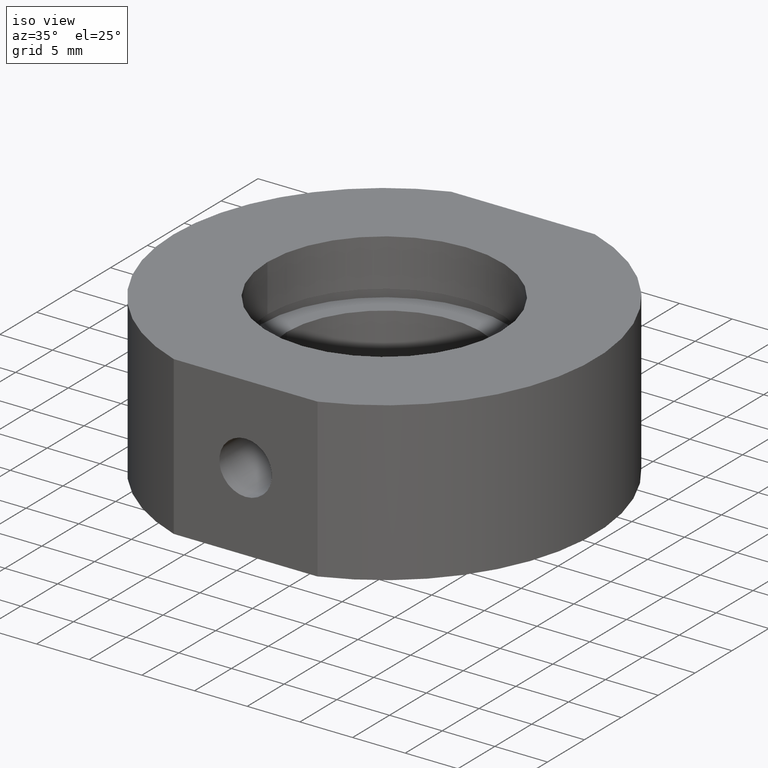
[diagram: clean part render]
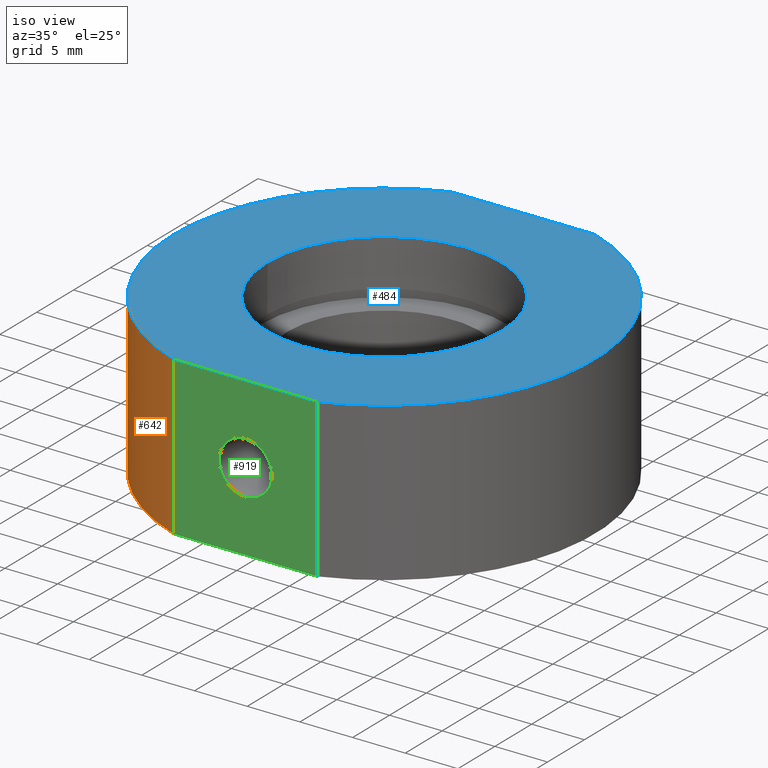
[diagram: same view with three faces highlighted in distinct colors, each labeled with its STEP entity id]
A machine part, iso view with three faces highlighted in distinct colors.
Their STEP definitions:

[orange] entity #642 — the highlighted cylindrical surface (partial cylindrical patch) has radius 20 mm, axis along (-0, -0, -1).
#19 = DIRECTION ( 'NONE',  ( 1.224646799147350500E-016, 0.0000000000000000000, 1.000000000000000000 ) ) ;
#27 = DIRECTION ( 'NONE',  ( -1.224646799147350500E-016, -0.0000000000000000000, -1.000000000000000000 ) ) ;
#40 = LINE ( 'NONE', #400, #304 ) ;
#89 = CARTESIAN_POINT ( 'NONE',  ( 2.992922652324802700E-015, 0.0000000000000000000, -7.500000000000000000 ) ) ;
#110 = CARTESIAN_POINT ( 'NONE',  ( 4.829892851045827200E-015, 0.0000000000000000000, 7.499999999999992900 ) ) ;
#168 = DIRECTION ( 'NONE',  ( -1.000000000000000000, 0.0000000000000000000, 1.301042606982605300E-016 ) ) ;
#196 = CARTESIAN_POINT ( 'NONE',  ( -19.99999999999999600, 0.0000000000000000000, 7.499999999999995600 ) ) ;
#223 = AXIS2_PLACEMENT_3D ( 'NONE', #89, #27, #168 ) ;
#231 = CIRCLE ( 'NONE', #542, 20.00000000000000000 ) ;
#265 = LINE ( 'NONE', #707, #591 ) ;
#303 = EDGE_CURVE ( 'NONE', #778, #910, #231, .T. ) ;
#304 = VECTOR ( 'NONE', #19, 1000.000000000000000 ) ;
#321 = ORIENTED_EDGE ( 'NONE', *, *, #710, .T. ) ;
#335 = CARTESIAN_POINT ( 'NONE',  ( -19.99999999999999600, 0.0000000000000000000, -7.499999999999997300 ) ) ;
#354 = EDGE_CURVE ( 'NONE', #360, #676, #748, .T. ) ;
#360 = VERTEX_POINT ( 'NONE', #618 ) ;
#400 = CARTESIAN_POINT ( 'NONE',  ( -6.823488843692808300, -18.79999999999999400, -31.93906810035839800 ) ) ;
#474 = DIRECTION ( 'NONE',  ( -1.000000000000000000, 0.0000000000000000000, 0.0000000000000000000 ) ) ;
#532 = ORIENTED_EDGE ( 'NONE', *, *, #354, .F. ) ;
#542 = AXIS2_PLACEMENT_3D ( 'NONE', #110, #926, #725 ) ;
#543 = DIRECTION ( 'NONE',  ( -1.224646799147350500E-016, -0.0000000000000000000, -1.000000000000000000 ) ) ;
#560 = ORIENTED_EDGE ( 'NONE', *, *, #303, .T. ) ;
#591 = VECTOR ( 'NONE', #638, 1000.000000000000000 ) ;
#615 = CYLINDRICAL_SURFACE ( 'NONE', #884, 20.00000000000000000 ) ;
#618 = CARTESIAN_POINT ( 'NONE',  ( -6.823488843692790500, -18.80000000000000100, -7.499999999999999100 ) ) ;
#638 = DIRECTION ( 'NONE',  ( -1.224646799147350500E-016, -0.0000000000000000000, -1.000000000000000000 ) ) ;
#641 = EDGE_LOOP ( 'NONE', ( #560, #321, #532, #881 ) ) ;
#642 = ADVANCED_FACE ( 'NONE', ( #652 ), #615, .T. ) ;
#652 = FACE_OUTER_BOUND ( 'NONE', #641, .T. ) ;
#676 = VERTEX_POINT ( 'NONE', #335 ) ;
#678 = CARTESIAN_POINT ( 'NONE',  ( 0.0000000000000000000, 0.0000000000000000000, -31.93906810035839800 ) ) ;
#707 = CARTESIAN_POINT ( 'NONE',  ( -20.00000000000000000, 0.0000000000000000000, -31.93906810035839800 ) ) ;
#710 = EDGE_CURVE ( 'NONE', #910, #676, #265, .T. ) ;
#725 = DIRECTION ( 'NONE',  ( -1.000000000000000000, 0.0000000000000000000, 1.301042606982605300E-016 ) ) ;
#748 = CIRCLE ( 'NONE', #223, 20.00000000000000000 ) ;
#749 = EDGE_CURVE ( 'NONE', #360, #778, #40, .T. ) ;
#778 = VERTEX_POINT ( 'NONE', #835 ) ;
#835 = CARTESIAN_POINT ( 'NONE',  ( -6.823488843692788700, -18.80000000000000100, 7.500000000000000000 ) ) ;
#881 = ORIENTED_EDGE ( 'NONE', *, *, #749, .T. ) ;
#884 = AXIS2_PLACEMENT_3D ( 'NONE', #678, #543, #474 ) ;
#910 = VERTEX_POINT ( 'NONE', #196 ) ;
#926 = DIRECTION ( 'NONE',  ( -1.224646799147350500E-016, -0.0000000000000000000, -1.000000000000000000 ) ) ;

[blue] entity #484 — the highlighted planar face has unit normal (-0, 0, -1).
#25 = CARTESIAN_POINT ( 'NONE',  ( 4.829892851045828800E-015, 0.0000000000000000000, 7.500000000000000000 ) ) ;
#34 = CIRCLE ( 'NONE', #787, 11.09999999999999800 ) ;
#37 = EDGE_CURVE ( 'NONE', #163, #637, #34, .T. ) ;
#42 = DIRECTION ( 'NONE',  ( -1.000000000000000000, 0.0000000000000000000, 1.301042606982605300E-016 ) ) ;
#55 = DIRECTION ( 'NONE',  ( -1.224646799147350500E-016, -0.0000000000000000000, -1.000000000000000000 ) ) ;
#76 = AXIS2_PLACEMENT_3D ( 'NONE', #355, #55, #42 ) ;
#110 = CARTESIAN_POINT ( 'NONE',  ( 4.829892851045827200E-015, 0.0000000000000000000, 7.499999999999992900 ) ) ;
#127 = DIRECTION ( 'NONE',  ( -1.000000000000000000, -0.0000000000000000000, -0.0000000000000000000 ) ) ;
#135 = ORIENTED_EDGE ( 'NONE', *, *, #401, .F. ) ;
#136 = PLANE ( 'NONE',  #230 ) ;
#163 = VERTEX_POINT ( 'NONE', #170 ) ;
#170 = CARTESIAN_POINT ( 'NONE',  ( 11.10000000000000100, 1.359357947053561800E-015, 7.499999999999998200 ) ) ;
#177 = DIRECTION ( 'NONE',  ( -1.224646799147350500E-016, -0.0000000000000000000, -1.000000000000000000 ) ) ;
#181 = VERTEX_POINT ( 'NONE', #233 ) ;
#196 = CARTESIAN_POINT ( 'NONE',  ( -19.99999999999999600, 0.0000000000000000000, 7.499999999999995600 ) ) ;
#204 = EDGE_LOOP ( 'NONE', ( #951, #483, #718, #135, #852 ) ) ;
#230 = AXIS2_PLACEMENT_3D ( 'NONE', #508, #368, #878 ) ;
#231 = CIRCLE ( 'NONE', #542, 20.00000000000000000 ) ;
#233 = CARTESIAN_POINT ( 'NONE',  ( -6.823488843692788700, 18.80000000000000100, 7.500000000000000000 ) ) ;
#252 = ORIENTED_EDGE ( 'NONE', *, *, #37, .T. ) ;
#271 = CARTESIAN_POINT ( 'NONE',  ( 6.823488843692798500, -18.80000000000000100, 7.500000000000000000 ) ) ;
#275 = FACE_BOUND ( 'NONE', #520, .T. ) ;
#291 = CARTESIAN_POINT ( 'NONE',  ( 4.829892851045828800E-015, 0.0000000000000000000, 7.500000000000000000 ) ) ;
#303 = EDGE_CURVE ( 'NONE', #778, #910, #231, .T. ) ;
#355 = CARTESIAN_POINT ( 'NONE',  ( 4.829892851045827200E-015, 0.0000000000000000000, 7.499999999999992900 ) ) ;
#368 = DIRECTION ( 'NONE',  ( -1.224646799147350500E-016, 0.0000000000000000000, -1.000000000000000000 ) ) ;
#392 = DIRECTION ( 'NONE',  ( -1.000000000000000000, 0.0000000000000000000, 1.562813942321448000E-016 ) ) ;
#401 = EDGE_CURVE ( 'NONE', #181, #409, #491, .T. ) ;
#403 = CARTESIAN_POINT ( 'NONE',  ( 4.829892851045827200E-015, 0.0000000000000000000, 7.499999999999992900 ) ) ;
#409 = VERTEX_POINT ( 'NONE', #843 ) ;
#483 = ORIENTED_EDGE ( 'NONE', *, *, #788, .F. ) ;
#484 = ADVANCED_FACE ( 'NONE', ( #876, #275 ), #136, .F. ) ;
#491 = LINE ( 'NONE', #904, #943 ) ;
#508 = CARTESIAN_POINT ( 'NONE',  ( 20.00000000000000400, 0.0000000000000000000, 7.499999999999995600 ) ) ;
#516 = DIRECTION ( 'NONE',  ( -1.000000000000000000, 0.0000000000000000000, 1.562813942321448000E-016 ) ) ;
#520 = EDGE_LOOP ( 'NONE', ( #658, #252 ) ) ;
#542 = AXIS2_PLACEMENT_3D ( 'NONE', #110, #926, #725 ) ;
#561 = DIRECTION ( 'NONE',  ( -1.000000000000000000, 0.0000000000000000000, 1.301042606982605300E-016 ) ) ;
#583 = CARTESIAN_POINT ( 'NONE',  ( -33.15197265346817100, -18.80000000000000100, 7.499999999999998200 ) ) ;
#625 = AXIS2_PLACEMENT_3D ( 'NONE', #25, #177, #392 ) ;
#637 = VERTEX_POINT ( 'NONE', #888 ) ;
#658 = ORIENTED_EDGE ( 'NONE', *, *, #699, .T. ) ;
#695 = DIRECTION ( 'NONE',  ( 1.000000000000000000, 0.0000000000000000000, 0.0000000000000000000 ) ) ;
#699 = EDGE_CURVE ( 'NONE', #637, #163, #765, .T. ) ;
#714 = EDGE_CURVE ( 'NONE', #910, #181, #921, .T. ) ;
#718 = ORIENTED_EDGE ( 'NONE', *, *, #897, .F. ) ;
#719 = LINE ( 'NONE', #583, #747 ) ;
#725 = DIRECTION ( 'NONE',  ( -1.000000000000000000, 0.0000000000000000000, 1.301042606982605300E-016 ) ) ;
#747 = VECTOR ( 'NONE', #127, 1000.000000000000000 ) ;
#765 = CIRCLE ( 'NONE', #625, 11.09999999999999800 ) ;
#778 = VERTEX_POINT ( 'NONE', #835 ) ;
#787 = AXIS2_PLACEMENT_3D ( 'NONE', #291, #942, #516 ) ;
#788 = EDGE_CURVE ( 'NONE', #902, #778, #719, .T. ) ;
#812 = AXIS2_PLACEMENT_3D ( 'NONE', #403, #903, #561 ) ;
#835 = CARTESIAN_POINT ( 'NONE',  ( -6.823488843692788700, -18.80000000000000100, 7.500000000000000000 ) ) ;
#843 = CARTESIAN_POINT ( 'NONE',  ( 6.823488843692798500, 18.80000000000000100, 7.500000000000000000 ) ) ;
#852 = ORIENTED_EDGE ( 'NONE', *, *, #714, .F. ) ;
#876 = FACE_OUTER_BOUND ( 'NONE', #204, .T. ) ;
#878 = DIRECTION ( 'NONE',  ( -1.000000000000000000, 0.0000000000000000000, 1.224646799147350500E-016 ) ) ;
#888 = CARTESIAN_POINT ( 'NONE',  ( -11.09999999999999300, 0.0000000000000000000, 7.500000000000001800 ) ) ;
#897 = EDGE_CURVE ( 'NONE', #409, #902, #930, .T. ) ;
#902 = VERTEX_POINT ( 'NONE', #271 ) ;
#903 = DIRECTION ( 'NONE',  ( -1.224646799147350500E-016, -0.0000000000000000000, -1.000000000000000000 ) ) ;
#904 = CARTESIAN_POINT ( 'NONE',  ( -33.15197265346817100, 18.80000000000000100, 7.499999999999998200 ) ) ;
#910 = VERTEX_POINT ( 'NONE', #196 ) ;
#921 = CIRCLE ( 'NONE', #812, 20.00000000000000000 ) ;
#926 = DIRECTION ( 'NONE',  ( -1.224646799147350500E-016, -0.0000000000000000000, -1.000000000000000000 ) ) ;
#930 = CIRCLE ( 'NONE', #76, 20.00000000000000000 ) ;
#942 = DIRECTION ( 'NONE',  ( -1.224646799147350500E-016, -0.0000000000000000000, -1.000000000000000000 ) ) ;
#943 = VECTOR ( 'NONE', #695, 1000.000000000000000 ) ;
#951 = ORIENTED_EDGE ( 'NONE', *, *, #303, .F. ) ;

[green] entity #919 — the highlighted planar face has unit normal (-0, 1, 0).
#3 = DIRECTION ( 'NONE',  ( -0.0000000000000000000, -1.000000000000000000, -0.0000000000000000000 ) ) ;
#19 = DIRECTION ( 'NONE',  ( 1.224646799147350500E-016, 0.0000000000000000000, 1.000000000000000000 ) ) ;
#40 = LINE ( 'NONE', #400, #304 ) ;
#58 = EDGE_LOOP ( 'NONE', ( #142, #234 ) ) ;
#67 = DIRECTION ( 'NONE',  ( 0.0000000000000000000, -0.0000000000000000000, 1.000000000000000000 ) ) ;
#83 = FACE_BOUND ( 'NONE', #58, .T. ) ;
#101 = CARTESIAN_POINT ( 'NONE',  ( 5.204170427930421300E-015, -18.80000000000000100, -2.499999999999999100 ) ) ;
#114 = EDGE_CURVE ( 'NONE', #711, #360, #559, .T. ) ;
#127 = DIRECTION ( 'NONE',  ( -1.000000000000000000, -0.0000000000000000000, -0.0000000000000000000 ) ) ;
#141 = DIRECTION ( 'NONE',  ( -0.0000000000000000000, -1.000000000000000000, -0.0000000000000000000 ) ) ;
#142 = ORIENTED_EDGE ( 'NONE', *, *, #594, .F. ) ;
#154 = CARTESIAN_POINT ( 'NONE',  ( 5.204170427930421300E-015, -18.80000000000000100, 0.0000000000000000000 ) ) ;
#155 = EDGE_LOOP ( 'NONE', ( #850, #860, #938, #791 ) ) ;
#159 = CIRCLE ( 'NONE', #194, 2.499999999999999100 ) ;
#194 = AXIS2_PLACEMENT_3D ( 'NONE', #154, #3, #687 ) ;
#215 = DIRECTION ( 'NONE',  ( -1.224646799147350500E-016, -0.0000000000000000000, -1.000000000000000000 ) ) ;
#217 = DIRECTION ( 'NONE',  ( 0.0000000000000000000, 0.0000000000000000000, -1.000000000000000000 ) ) ;
#234 = ORIENTED_EDGE ( 'NONE', *, *, #490, .F. ) ;
#254 = FACE_OUTER_BOUND ( 'NONE', #155, .T. ) ;
#271 = CARTESIAN_POINT ( 'NONE',  ( 6.823488843692798500, -18.80000000000000100, 7.500000000000000000 ) ) ;
#288 = LINE ( 'NONE', #351, #785 ) ;
#296 = CARTESIAN_POINT ( 'NONE',  ( 11.10000000000000300, -18.80000000000000100, -7.500000000000004400 ) ) ;
#304 = VECTOR ( 'NONE', #19, 1000.000000000000000 ) ;
#324 = DIRECTION ( 'NONE',  ( -1.000000000000000000, -0.0000000000000000000, 1.224646799147350500E-016 ) ) ;
#351 = CARTESIAN_POINT ( 'NONE',  ( 6.823488843692808300, -18.79999999999999400, -31.93906810035839800 ) ) ;
#360 = VERTEX_POINT ( 'NONE', #618 ) ;
#372 = CARTESIAN_POINT ( 'NONE',  ( 5.510332127717259900E-015, -18.80000000000000100, 2.499999999999999100 ) ) ;
#400 = CARTESIAN_POINT ( 'NONE',  ( -6.823488843692808300, -18.79999999999999400, -31.93906810035839800 ) ) ;
#443 = DIRECTION ( 'NONE',  ( -0.0000000000000000000, 1.000000000000000000, 0.0000000000000000000 ) ) ;
#490 = EDGE_CURVE ( 'NONE', #605, #741, #567, .T. ) ;
#521 = AXIS2_PLACEMENT_3D ( 'NONE', #665, #141, #217 ) ;
#559 = LINE ( 'NONE', #296, #767 ) ;
#567 = CIRCLE ( 'NONE', #521, 2.499999999999999100 ) ;
#583 = CARTESIAN_POINT ( 'NONE',  ( -33.15197265346817100, -18.80000000000000100, 7.499999999999998200 ) ) ;
#594 = EDGE_CURVE ( 'NONE', #741, #605, #159, .T. ) ;
#605 = VERTEX_POINT ( 'NONE', #372 ) ;
#618 = CARTESIAN_POINT ( 'NONE',  ( -6.823488843692790500, -18.80000000000000100, -7.499999999999999100 ) ) ;
#650 = EDGE_CURVE ( 'NONE', #902, #711, #288, .T. ) ;
#665 = CARTESIAN_POINT ( 'NONE',  ( 5.204170427930421300E-015, -18.80000000000000100, 0.0000000000000000000 ) ) ;
#687 = DIRECTION ( 'NONE',  ( 0.0000000000000000000, 0.0000000000000000000, -1.000000000000000000 ) ) ;
#711 = VERTEX_POINT ( 'NONE', #777 ) ;
#719 = LINE ( 'NONE', #583, #747 ) ;
#741 = VERTEX_POINT ( 'NONE', #101 ) ;
#747 = VECTOR ( 'NONE', #127, 1000.000000000000000 ) ;
#749 = EDGE_CURVE ( 'NONE', #360, #778, #40, .T. ) ;
#751 = PLANE ( 'NONE',  #879 ) ;
#767 = VECTOR ( 'NONE', #324, 1000.000000000000000 ) ;
#777 = CARTESIAN_POINT ( 'NONE',  ( 6.823488843692795800, -18.80000000000000100, -7.500000000000000900 ) ) ;
#778 = VERTEX_POINT ( 'NONE', #835 ) ;
#785 = VECTOR ( 'NONE', #215, 1000.000000000000000 ) ;
#788 = EDGE_CURVE ( 'NONE', #902, #778, #719, .T. ) ;
#791 = ORIENTED_EDGE ( 'NONE', *, *, #650, .F. ) ;
#813 = CARTESIAN_POINT ( 'NONE',  ( -33.15197265346817100, -18.80000000000000100, -41.50000000000002100 ) ) ;
#835 = CARTESIAN_POINT ( 'NONE',  ( -6.823488843692788700, -18.80000000000000100, 7.500000000000000000 ) ) ;
#850 = ORIENTED_EDGE ( 'NONE', *, *, #788, .T. ) ;
#860 = ORIENTED_EDGE ( 'NONE', *, *, #749, .F. ) ;
#879 = AXIS2_PLACEMENT_3D ( 'NONE', #813, #443, #67 ) ;
#902 = VERTEX_POINT ( 'NONE', #271 ) ;
#919 = ADVANCED_FACE ( 'NONE', ( #83, #254 ), #751, .F. ) ;
#938 = ORIENTED_EDGE ( 'NONE', *, *, #114, .F. ) ;